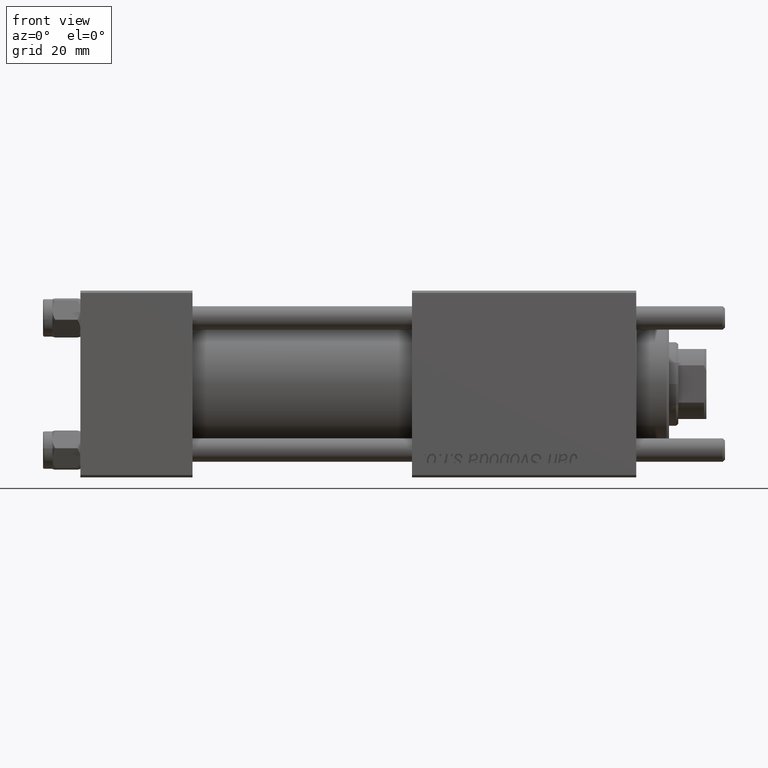
[diagram: clean part render]
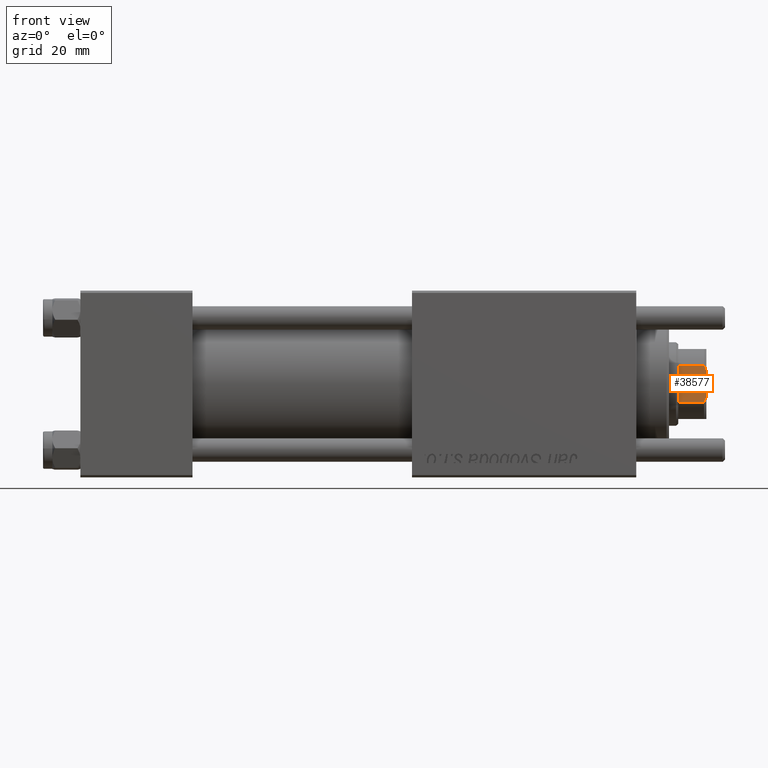
[diagram: same view with one face highlighted and labeled with its STEP entity id]
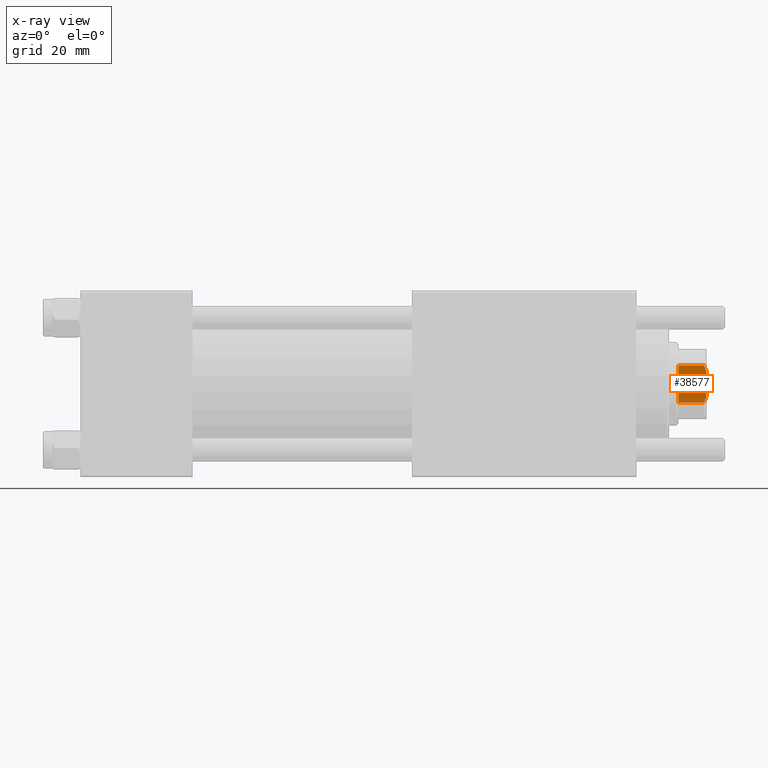
[diagram: x-ray of the same camera — body ghosted, the highlighted face saturated]
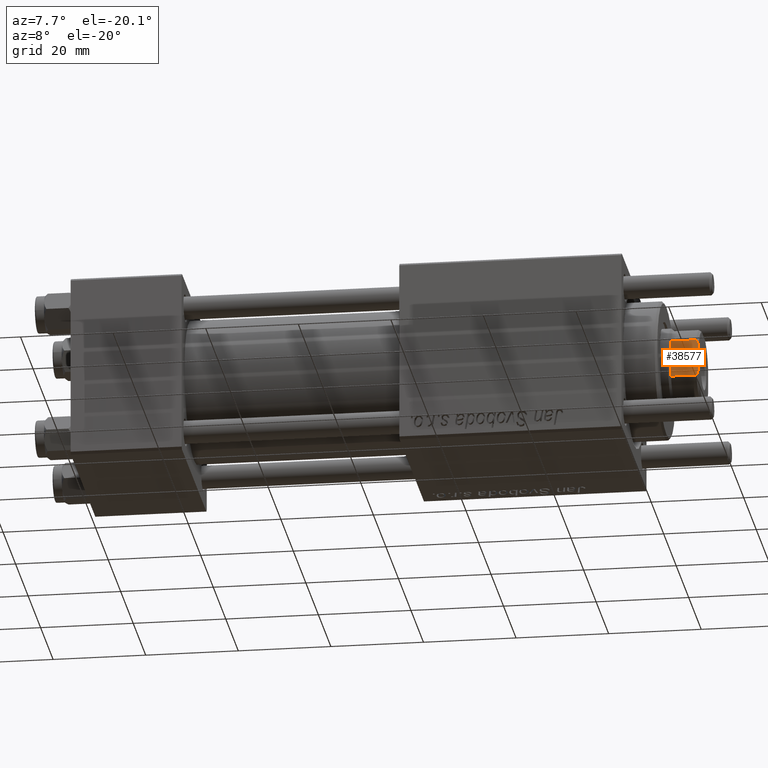
[diagram: same view with one face highlighted and labeled with its STEP entity id]
A machine part, front view. The second image highlights one B-rep face of the part: STEP entity #38577.
The next image is the same camera in x-ray: the body ghosted, the highlighted face saturated — about 0% of this face is hidden behind the body in this view.
A second angle (auxiliary view) of the same face is appended — the face is thin or edge-on in the first view.
In plain terms, the highlighted planar face has unit normal (0, 1, 0).
Its self-contained STEP definition (entity closure, byte-faithful):
#204 = CARTESIAN_POINT ( 'NONE',  ( 7.500000000000000000, 4.000000000000001776, 109.4999999999998579 ) ) ;
#452 = CARTESIAN_POINT ( 'NONE',  ( 7.500000000000000000, -4.000000000000002665, 109.4999999999998579 ) ) ;
#2508 = B_SPLINE_CURVE_WITH_KNOTS ( 'NONE', 3,
 ( #204, #29739, #52655, #25443 ),
 .UNSPECIFIED., .F., .F.,
 ( 4, 4 ),
 ( 9.540979117872439019E-18, 0.001314892599675281451 ),
 .UNSPECIFIED. ) ;
#2790 = EDGE_CURVE ( 'NONE', #15803, #21310, #31679, .T. ) ;
#2936 = VECTOR ( 'NONE', #51005, 1000.000000000000000 ) ;
#3411 = ORIENTED_EDGE ( 'NONE', *, *, #39697, .T. ) ;
#3874 = LINE ( 'NONE', #39134, #5947 ) ;
#4860 = PLANE ( 'NONE',  #34207 ) ;
#5947 = VECTOR ( 'NONE', #25657, 1000.000000000000000 ) ;
#8691 = LINE ( 'NONE', #25885, #33460 ) ;
#11370 = VECTOR ( 'NONE', #24580, 1000.000000000000000 ) ;
#12490 = CARTESIAN_POINT ( 'NONE',  ( 7.500000000000000000, -4.000000000000002665, 104.0000000000000000 ) ) ;
#15803 = VERTEX_POINT ( 'NONE', #32431 ) ;
#16802 = CARTESIAN_POINT ( 'NONE',  ( 7.500000000000001776, -3.602928590769614914, 109.6868571337553675 ) ) ;
#17093 = CARTESIAN_POINT ( 'NONE',  ( 7.500000000000000888, -3.198463757182497869, 109.8557317173096379 ) ) ;
#17672 = CARTESIAN_POINT ( 'NONE',  ( 7.500000000000000000, 4.000000000000001776, 109.4999999999998579 ) ) ;
#17936 = CARTESIAN_POINT ( 'NONE',  ( 7.500000000000000888, -2.783882181414683465, 110.0000000000000000 ) ) ;
#18480 = VERTEX_POINT ( 'NONE', #43898 ) ;
#18566 = EDGE_CURVE ( 'NONE', #15803, #18480, #25204, .T. ) ;
#19219 = VERTEX_POINT ( 'NONE', #46450 ) ;
#21310 = VERTEX_POINT ( 'NONE', #31312 ) ;
#21352 = ORIENTED_EDGE ( 'NONE', *, *, #29336, .T. ) ;
#22337 = DIRECTION ( 'NONE',  ( -1.000000000000000000, -1.156482317317871478E-16, 0.000000000000000000 ) ) ;
#24580 = DIRECTION ( 'NONE',  ( -0.000000000000000000, -0.000000000000000000, 1.000000000000000000 ) ) ;
#25204 = LINE ( 'NONE', #33522, #2936 ) ;
#25443 = CARTESIAN_POINT ( 'NONE',  ( 7.500000000000000888, 2.783882181414685686, 110.0000000000000000 ) ) ;
#25657 = DIRECTION ( 'NONE',  ( -1.156482317317871478E-16, 1.000000000000000000, -0.000000000000000000 ) ) ;
#25885 = CARTESIAN_POINT ( 'NONE',  ( 7.500000000000000000, -4.000000000000002665, -0.001000000000001000089 ) ) ;
#26443 = ORIENTED_EDGE ( 'NONE', *, *, #2790, .T. ) ;
#28309 = CARTESIAN_POINT ( 'NONE',  ( 7.500000000000000000, 4.000000000000001776, -0.001000000000001000089 ) ) ;
#29336 = EDGE_CURVE ( 'NONE', #42604, #19219, #3874, .T. ) ;
#29739 = CARTESIAN_POINT ( 'NONE',  ( 7.500000000000000000, 3.602928590769622907, 109.6868571337553675 ) ) ;
#29998 = EDGE_CURVE ( 'NONE', #48573, #18480, #2508, .T. ) ;
#31312 = CARTESIAN_POINT ( 'NONE',  ( 7.500000000000000000, -4.000000000000002665, 109.4999999999998579 ) ) ;
#31679 = B_SPLINE_CURVE_WITH_KNOTS ( 'NONE', 3,
 ( #17936, #17093, #16802, #452 ),
 .UNSPECIFIED., .F., .F.,
 ( 4, 4 ),
 ( 4.336808689942017736E-19, 0.001314892599675292944 ),
 .UNSPECIFIED. ) ;
#32431 = CARTESIAN_POINT ( 'NONE',  ( 7.500000000000000888, -2.783882181414683465, 110.0000000000000000 ) ) ;
#33460 = VECTOR ( 'NONE', #48235, 1000.000000000000000 ) ;
#33522 = CARTESIAN_POINT ( 'NONE',  ( 7.500000000000000000, 7.500000000000000000, 110.0000000000000000 ) ) ;
#34207 = AXIS2_PLACEMENT_3D ( 'NONE', #51890, #22337, #47586 ) ;
#37769 = LINE ( 'NONE', #28309, #11370 ) ;
#38577 = ADVANCED_FACE ( 'NONE', ( #56474 ), #4860, .F. ) ;
#39134 = CARTESIAN_POINT ( 'NONE',  ( 7.500000000000000000, 7.500000000000000000, 104.0000000000000000 ) ) ;
#39697 = EDGE_CURVE ( 'NONE', #19219, #48573, #37769, .T. ) ;
#41126 = ORIENTED_EDGE ( 'NONE', *, *, #18566, .F. ) ;
#41432 = ORIENTED_EDGE ( 'NONE', *, *, #44061, .F. ) ;
#42604 = VERTEX_POINT ( 'NONE', #12490 ) ;
#43898 = CARTESIAN_POINT ( 'NONE',  ( 7.500000000000000888, 2.783882181414685686, 110.0000000000000000 ) ) ;
#44061 = EDGE_CURVE ( 'NONE', #42604, #21310, #8691, .T. ) ;
#46450 = CARTESIAN_POINT ( 'NONE',  ( 7.500000000000000000, 4.000000000000001776, 103.9999999999999716 ) ) ;
#47586 = DIRECTION ( 'NONE',  ( 1.156482317317871478E-16, -1.000000000000000000, 0.000000000000000000 ) ) ;
#48235 = DIRECTION ( 'NONE',  ( -0.000000000000000000, -0.000000000000000000, 1.000000000000000000 ) ) ;
#48573 = VERTEX_POINT ( 'NONE', #17672 ) ;
#51005 = DIRECTION ( 'NONE',  ( -1.156482317317871478E-16, 1.000000000000000000, -0.000000000000000000 ) ) ;
#51890 = CARTESIAN_POINT ( 'NONE',  ( 7.500000000000000000, 7.500000000000000000, 110.0000000000000000 ) ) ;
#52316 = ORIENTED_EDGE ( 'NONE', *, *, #29998, .T. ) ;
#52655 = CARTESIAN_POINT ( 'NONE',  ( 7.500000000000000888, 3.198463757182493428, 109.8557317173096379 ) ) ;
#56474 = FACE_OUTER_BOUND ( 'NONE', #56705, .T. ) ;
#56705 = EDGE_LOOP ( 'NONE', ( #3411, #52316, #41126, #26443, #41432, #21352 ) ) ;